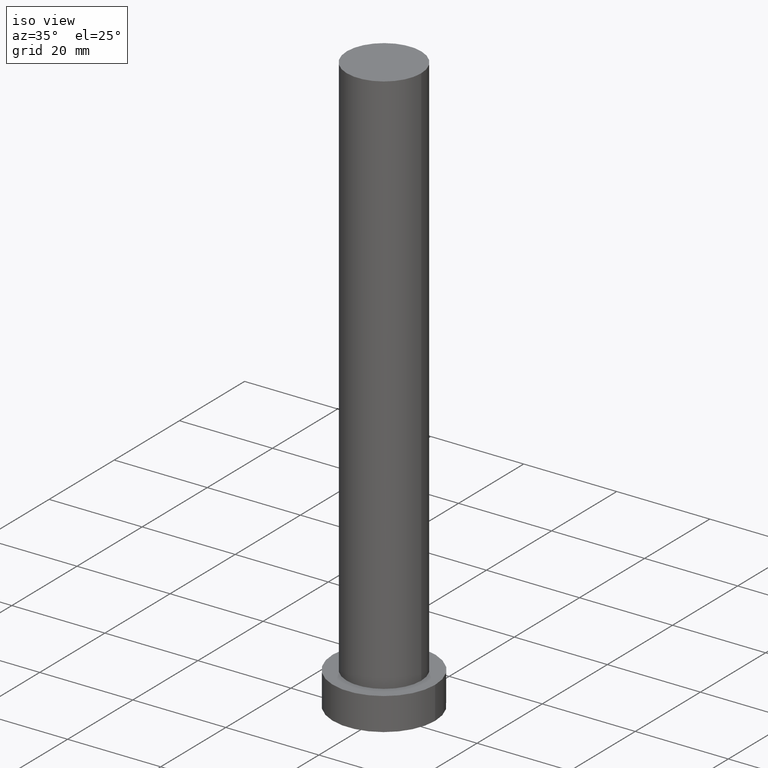
[diagram: clean part render]
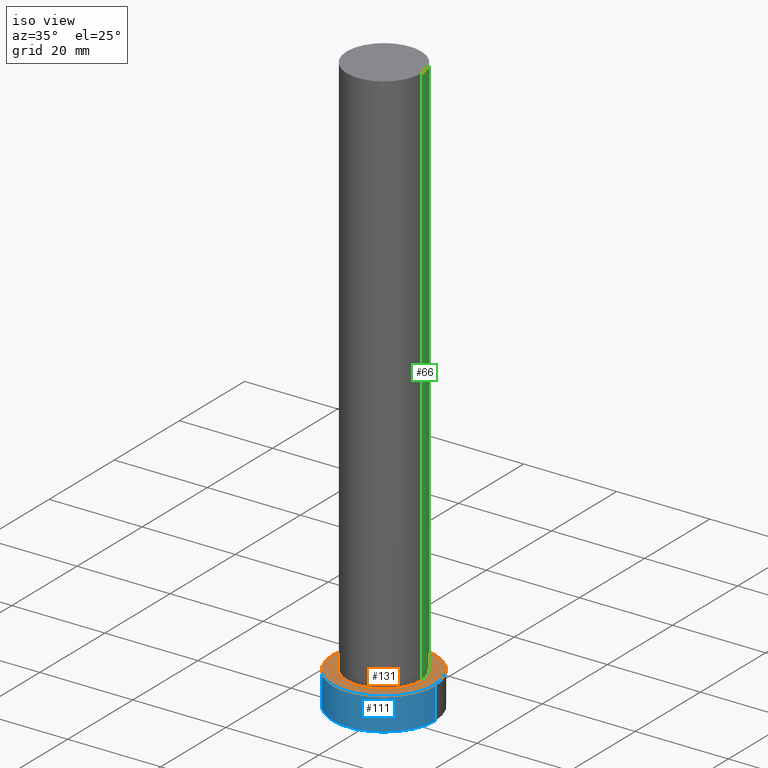
[diagram: same view with three faces highlighted in distinct colors, each labeled with its STEP entity id]
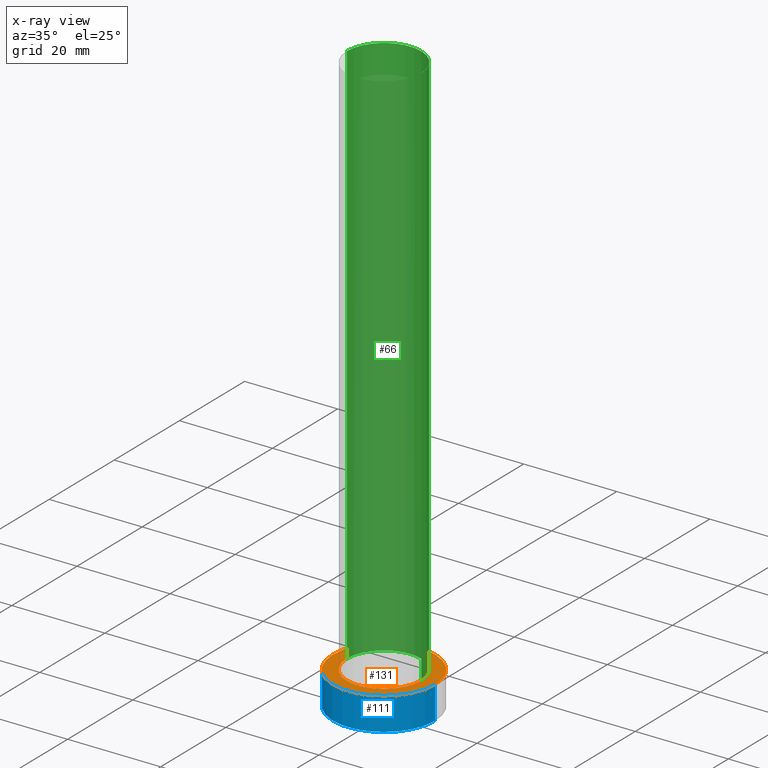
[diagram: x-ray of the same camera — body ghosted, the three highlighted faces saturated]
A machine part, iso view with three faces highlighted in distinct colors.
The next image is the same camera in x-ray (body ghosted, the three faces saturated) — at least one of them is partly hidden behind the body in this view.
Their STEP definitions:

[orange] entity #131 — the highlighted planar face has unit normal (0, 0, 1).
#2 = VERTEX_POINT ( 'NONE', #116 ) ;
#6 = DIRECTION ( 'NONE',  ( 1.000000000000000000, 0.000000000000000000, 0.000000000000000000 ) ) ;
#15 = AXIS2_PLACEMENT_3D ( 'NONE', #38, #183, #18 ) ;
#18 = DIRECTION ( 'NONE',  ( 1.000000000000000000, 0.000000000000000000, 0.000000000000000000 ) ) ;
#20 = AXIS2_PLACEMENT_3D ( 'NONE', #120, #28, #82 ) ;
#22 = CIRCLE ( 'NONE', #20, 8.000000000000000000 ) ;
#24 = EDGE_CURVE ( 'NONE', #165, #2, #95, .T. ) ;
#28 = DIRECTION ( 'NONE',  ( 0.000000000000000000, 0.000000000000000000, 1.000000000000000000 ) ) ;
#31 = EDGE_LOOP ( 'NONE', ( #85, #215 ) ) ;
#38 = CARTESIAN_POINT ( 'NONE',  ( 0.000000000000000000, 0.000000000000000000, 7.000000000000000000 ) ) ;
#49 = EDGE_CURVE ( 'NONE', #132, #55, #22, .T. ) ;
#55 = VERTEX_POINT ( 'NONE', #177 ) ;
#60 = DIRECTION ( 'NONE',  ( 0.000000000000000000, 0.000000000000000000, 1.000000000000000000 ) ) ;
#65 = AXIS2_PLACEMENT_3D ( 'NONE', #108, #109, #6 ) ;
#82 = DIRECTION ( 'NONE',  ( 1.000000000000000000, 0.000000000000000000, 0.000000000000000000 ) ) ;
#85 = ORIENTED_EDGE ( 'NONE', *, *, #212, .F. ) ;
#88 = AXIS2_PLACEMENT_3D ( 'NONE', #89, #206, #138 ) ;
#89 = CARTESIAN_POINT ( 'NONE',  ( 0.000000000000000000, 0.000000000000000000, 7.000000000000000000 ) ) ;
#94 = PLANE ( 'NONE',  #88 ) ;
#95 = CIRCLE ( 'NONE', #168, 11.00000000000000000 ) ;
#101 = CARTESIAN_POINT ( 'NONE',  ( 0.000000000000000000, 0.000000000000000000, 7.000000000000000000 ) ) ;
#103 = EDGE_LOOP ( 'NONE', ( #207, #227 ) ) ;
#108 = CARTESIAN_POINT ( 'NONE',  ( 0.000000000000000000, 0.000000000000000000, 7.000000000000000000 ) ) ;
#109 = DIRECTION ( 'NONE',  ( 0.000000000000000000, 0.000000000000000000, 1.000000000000000000 ) ) ;
#113 = FACE_OUTER_BOUND ( 'NONE', #103, .T. ) ;
#116 = CARTESIAN_POINT ( 'NONE',  ( -11.00000000000000000, 0.000000000000000000, 7.000000000000000000 ) ) ;
#120 = CARTESIAN_POINT ( 'NONE',  ( 0.000000000000000000, 0.000000000000000000, 7.000000000000000000 ) ) ;
#131 = ADVANCED_FACE ( 'NONE', ( #136, #113 ), #94, .T. ) ;
#132 = VERTEX_POINT ( 'NONE', #224 ) ;
#136 = FACE_BOUND ( 'NONE', #31, .T. ) ;
#138 = DIRECTION ( 'NONE',  ( 1.000000000000000000, 0.000000000000000000, -0.000000000000000000 ) ) ;
#144 = DIRECTION ( 'NONE',  ( 1.000000000000000000, 0.000000000000000000, 0.000000000000000000 ) ) ;
#165 = VERTEX_POINT ( 'NONE', #199 ) ;
#166 = CIRCLE ( 'NONE', #15, 11.00000000000000000 ) ;
#168 = AXIS2_PLACEMENT_3D ( 'NONE', #101, #60, #144 ) ;
#175 = CIRCLE ( 'NONE', #65, 8.000000000000000000 ) ;
#177 = CARTESIAN_POINT ( 'NONE',  ( -8.000000000000000000, 0.000000000000000000, 7.000000000000000000 ) ) ;
#183 = DIRECTION ( 'NONE',  ( 0.000000000000000000, 0.000000000000000000, 1.000000000000000000 ) ) ;
#190 = EDGE_CURVE ( 'NONE', #2, #165, #166, .T. ) ;
#199 = CARTESIAN_POINT ( 'NONE',  ( 11.00000000000000000, 1.347111479062088405E-15, 7.000000000000000000 ) ) ;
#206 = DIRECTION ( 'NONE',  ( 0.000000000000000000, 0.000000000000000000, 1.000000000000000000 ) ) ;
#207 = ORIENTED_EDGE ( 'NONE', *, *, #190, .T. ) ;
#212 = EDGE_CURVE ( 'NONE', #55, #132, #175, .T. ) ;
#215 = ORIENTED_EDGE ( 'NONE', *, *, #49, .F. ) ;
#224 = CARTESIAN_POINT ( 'NONE',  ( 8.000000000000000000, 9.797174393178825657E-16, 7.000000000000000000 ) ) ;
#227 = ORIENTED_EDGE ( 'NONE', *, *, #24, .T. ) ;

[blue] entity #111 — the highlighted cylindrical surface (partial cylindrical patch) has radius 11 mm, axis along (-0, -0, -1).
#2 = VERTEX_POINT ( 'NONE', #116 ) ;
#4 = EDGE_CURVE ( 'NONE', #165, #127, #247, .T. ) ;
#7 = DIRECTION ( 'NONE',  ( -0.000000000000000000, -0.000000000000000000, -1.000000000000000000 ) ) ;
#15 = AXIS2_PLACEMENT_3D ( 'NONE', #38, #183, #18 ) ;
#18 = DIRECTION ( 'NONE',  ( 1.000000000000000000, 0.000000000000000000, 0.000000000000000000 ) ) ;
#38 = CARTESIAN_POINT ( 'NONE',  ( 0.000000000000000000, 0.000000000000000000, 7.000000000000000000 ) ) ;
#42 = CARTESIAN_POINT ( 'NONE',  ( 11.00000000000000000, 1.347111479062088405E-15, 7.000000000000000000 ) ) ;
#43 = EDGE_CURVE ( 'NONE', #192, #127, #130, .T. ) ;
#45 = DIRECTION ( 'NONE',  ( 1.000000000000000000, 0.000000000000000000, 0.000000000000000000 ) ) ;
#48 = VECTOR ( 'NONE', #7, 1000.000000000000000 ) ;
#63 = ORIENTED_EDGE ( 'NONE', *, *, #43, .T. ) ;
#70 = ORIENTED_EDGE ( 'NONE', *, *, #4, .F. ) ;
#73 = VECTOR ( 'NONE', #117, 1000.000000000000000 ) ;
#79 = EDGE_LOOP ( 'NONE', ( #70, #209, #149, #63 ) ) ;
#110 = DIRECTION ( 'NONE',  ( -0.000000000000000000, -0.000000000000000000, -1.000000000000000000 ) ) ;
#111 = ADVANCED_FACE ( 'NONE', ( #241 ), #133, .T. ) ;
#114 = LINE ( 'NONE', #187, #48 ) ;
#116 = CARTESIAN_POINT ( 'NONE',  ( -11.00000000000000000, 0.000000000000000000, 7.000000000000000000 ) ) ;
#117 = DIRECTION ( 'NONE',  ( -0.000000000000000000, -0.000000000000000000, -1.000000000000000000 ) ) ;
#127 = VERTEX_POINT ( 'NONE', #244 ) ;
#130 = CIRCLE ( 'NONE', #248, 11.00000000000000000 ) ;
#133 = CYLINDRICAL_SURFACE ( 'NONE', #139, 11.00000000000000000 ) ;
#139 = AXIS2_PLACEMENT_3D ( 'NONE', #221, #110, #239 ) ;
#141 = EDGE_CURVE ( 'NONE', #2, #192, #114, .T. ) ;
#149 = ORIENTED_EDGE ( 'NONE', *, *, #141, .T. ) ;
#165 = VERTEX_POINT ( 'NONE', #199 ) ;
#166 = CIRCLE ( 'NONE', #15, 11.00000000000000000 ) ;
#181 = CARTESIAN_POINT ( 'NONE',  ( -11.00000000000000000, 0.000000000000000000, 0.000000000000000000 ) ) ;
#183 = DIRECTION ( 'NONE',  ( 0.000000000000000000, 0.000000000000000000, 1.000000000000000000 ) ) ;
#187 = CARTESIAN_POINT ( 'NONE',  ( -11.00000000000000000, 0.000000000000000000, 7.000000000000000000 ) ) ;
#190 = EDGE_CURVE ( 'NONE', #2, #165, #166, .T. ) ;
#192 = VERTEX_POINT ( 'NONE', #181 ) ;
#195 = CARTESIAN_POINT ( 'NONE',  ( 0.000000000000000000, 0.000000000000000000, 0.000000000000000000 ) ) ;
#199 = CARTESIAN_POINT ( 'NONE',  ( 11.00000000000000000, 1.347111479062088405E-15, 7.000000000000000000 ) ) ;
#209 = ORIENTED_EDGE ( 'NONE', *, *, #190, .F. ) ;
#221 = CARTESIAN_POINT ( 'NONE',  ( 0.000000000000000000, 0.000000000000000000, 7.000000000000000000 ) ) ;
#226 = DIRECTION ( 'NONE',  ( 0.000000000000000000, 0.000000000000000000, 1.000000000000000000 ) ) ;
#239 = DIRECTION ( 'NONE',  ( -1.000000000000000000, 0.000000000000000000, 0.000000000000000000 ) ) ;
#241 = FACE_OUTER_BOUND ( 'NONE', #79, .T. ) ;
#244 = CARTESIAN_POINT ( 'NONE',  ( 11.00000000000000000, 1.347111479062088405E-15, 0.000000000000000000 ) ) ;
#247 = LINE ( 'NONE', #42, #73 ) ;
#248 = AXIS2_PLACEMENT_3D ( 'NONE', #195, #226, #45 ) ;

[green] entity #66 — the highlighted cylindrical surface (partial cylindrical patch) has radius 8 mm, axis along (-0, -0, -1).
#8 = EDGE_CURVE ( 'NONE', #167, #132, #249, .T. ) ;
#9 = DIRECTION ( 'NONE',  ( -0.000000000000000000, -0.000000000000000000, -1.000000000000000000 ) ) ;
#12 = ORIENTED_EDGE ( 'NONE', *, *, #8, .T. ) ;
#16 = ORIENTED_EDGE ( 'NONE', *, *, #153, .F. ) ;
#19 = CARTESIAN_POINT ( 'NONE',  ( -8.000000000000000000, 0.000000000000000000, 125.0000000000000000 ) ) ;
#20 = AXIS2_PLACEMENT_3D ( 'NONE', #120, #28, #82 ) ;
#22 = CIRCLE ( 'NONE', #20, 8.000000000000000000 ) ;
#28 = DIRECTION ( 'NONE',  ( 0.000000000000000000, 0.000000000000000000, 1.000000000000000000 ) ) ;
#35 = DIRECTION ( 'NONE',  ( 1.000000000000000000, 0.000000000000000000, 0.000000000000000000 ) ) ;
#36 = AXIS2_PLACEMENT_3D ( 'NONE', #77, #164, #35 ) ;
#37 = DIRECTION ( 'NONE',  ( -0.000000000000000000, -0.000000000000000000, -1.000000000000000000 ) ) ;
#49 = EDGE_CURVE ( 'NONE', #132, #55, #22, .T. ) ;
#50 = EDGE_LOOP ( 'NONE', ( #16, #12, #100, #105 ) ) ;
#55 = VERTEX_POINT ( 'NONE', #177 ) ;
#61 = CARTESIAN_POINT ( 'NONE',  ( 8.000000000000000000, 9.797174393178825657E-16, 125.0000000000000000 ) ) ;
#66 = ADVANCED_FACE ( 'NONE', ( #179 ), #67, .T. ) ;
#67 = CYLINDRICAL_SURFACE ( 'NONE', #235, 8.000000000000000000 ) ;
#75 = DIRECTION ( 'NONE',  ( -0.000000000000000000, -0.000000000000000000, -1.000000000000000000 ) ) ;
#77 = CARTESIAN_POINT ( 'NONE',  ( 0.000000000000000000, 0.000000000000000000, 125.0000000000000000 ) ) ;
#82 = DIRECTION ( 'NONE',  ( 1.000000000000000000, 0.000000000000000000, 0.000000000000000000 ) ) ;
#97 = EDGE_CURVE ( 'NONE', #143, #55, #162, .T. ) ;
#100 = ORIENTED_EDGE ( 'NONE', *, *, #49, .T. ) ;
#102 = VECTOR ( 'NONE', #75, 1000.000000000000000 ) ;
#105 = ORIENTED_EDGE ( 'NONE', *, *, #97, .F. ) ;
#120 = CARTESIAN_POINT ( 'NONE',  ( 0.000000000000000000, 0.000000000000000000, 7.000000000000000000 ) ) ;
#125 = DIRECTION ( 'NONE',  ( -1.000000000000000000, 0.000000000000000000, 0.000000000000000000 ) ) ;
#132 = VERTEX_POINT ( 'NONE', #224 ) ;
#142 = VECTOR ( 'NONE', #9, 1000.000000000000000 ) ;
#143 = VERTEX_POINT ( 'NONE', #182 ) ;
#153 = EDGE_CURVE ( 'NONE', #167, #143, #232, .T. ) ;
#155 = CARTESIAN_POINT ( 'NONE',  ( 0.000000000000000000, 0.000000000000000000, 125.0000000000000000 ) ) ;
#162 = LINE ( 'NONE', #19, #102 ) ;
#164 = DIRECTION ( 'NONE',  ( 0.000000000000000000, 0.000000000000000000, 1.000000000000000000 ) ) ;
#167 = VERTEX_POINT ( 'NONE', #218 ) ;
#177 = CARTESIAN_POINT ( 'NONE',  ( -8.000000000000000000, 0.000000000000000000, 7.000000000000000000 ) ) ;
#179 = FACE_OUTER_BOUND ( 'NONE', #50, .T. ) ;
#182 = CARTESIAN_POINT ( 'NONE',  ( -8.000000000000000000, 0.000000000000000000, 125.0000000000000000 ) ) ;
#218 = CARTESIAN_POINT ( 'NONE',  ( 8.000000000000000000, 9.797174393178825657E-16, 125.0000000000000000 ) ) ;
#224 = CARTESIAN_POINT ( 'NONE',  ( 8.000000000000000000, 9.797174393178825657E-16, 7.000000000000000000 ) ) ;
#232 = CIRCLE ( 'NONE', #36, 8.000000000000000000 ) ;
#235 = AXIS2_PLACEMENT_3D ( 'NONE', #155, #37, #125 ) ;
#249 = LINE ( 'NONE', #61, #142 ) ;